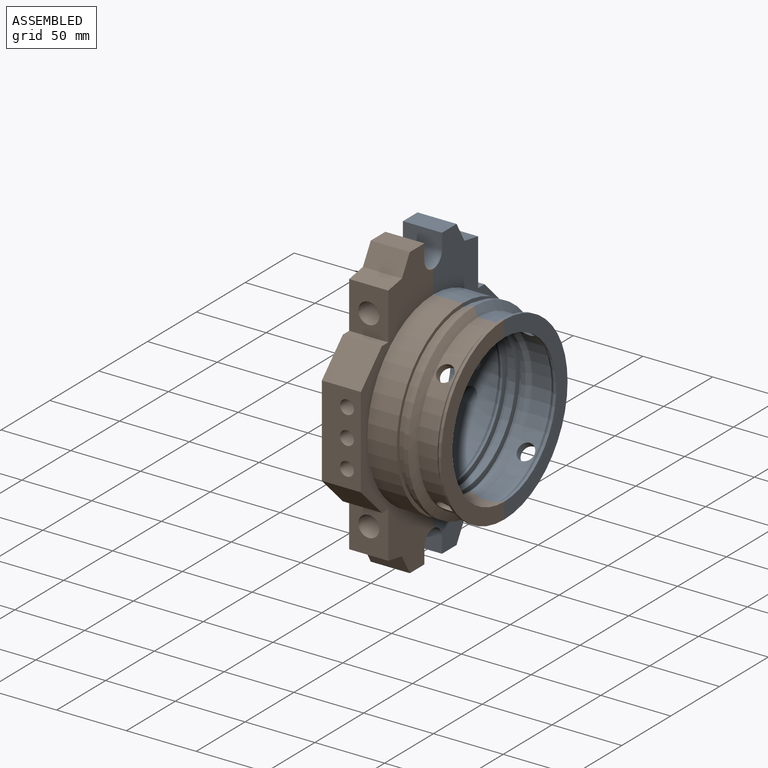
[diagram: assembled view]
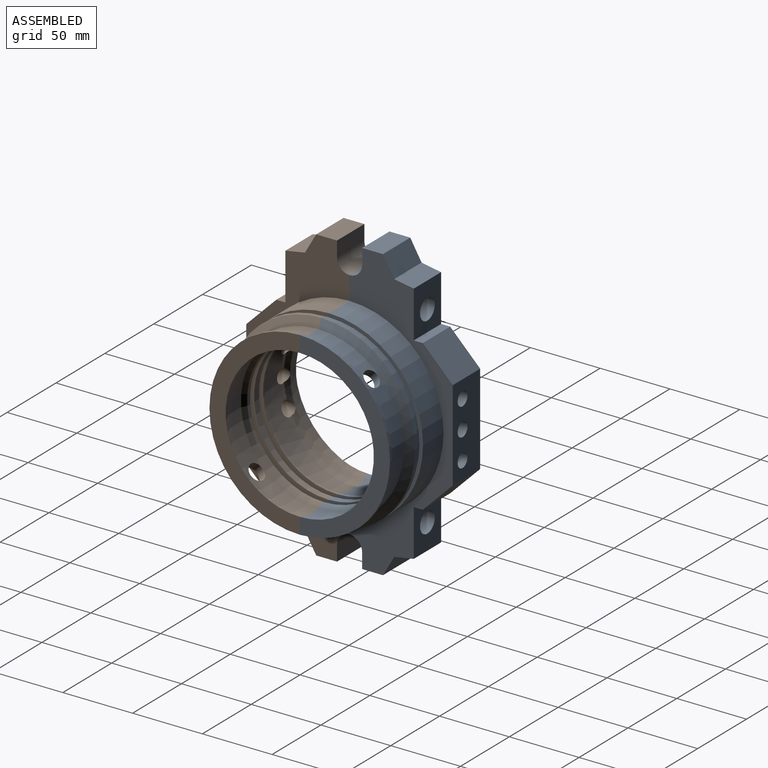
[diagram: assembled view, second angle]
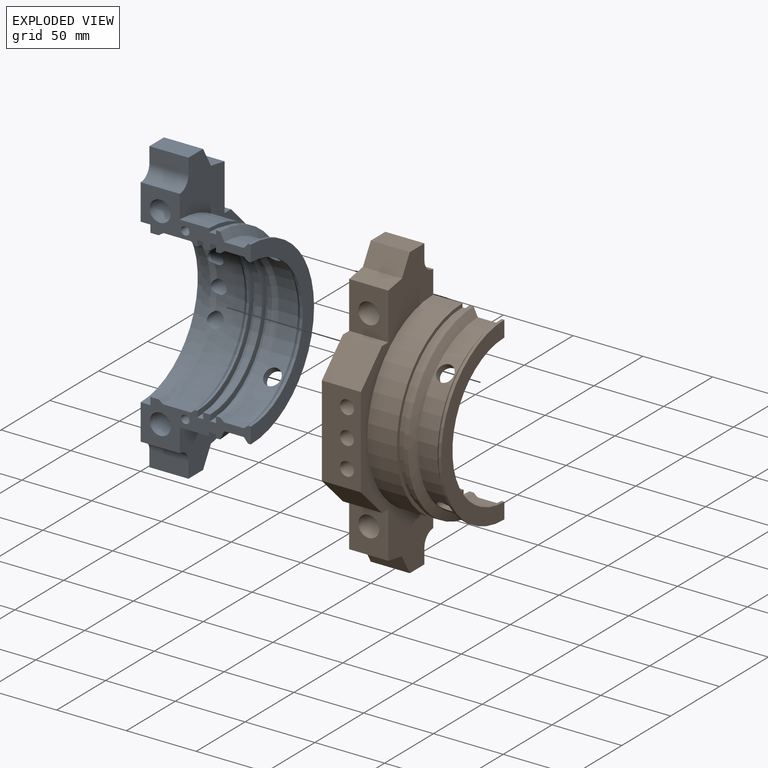
[diagram: exploded view]
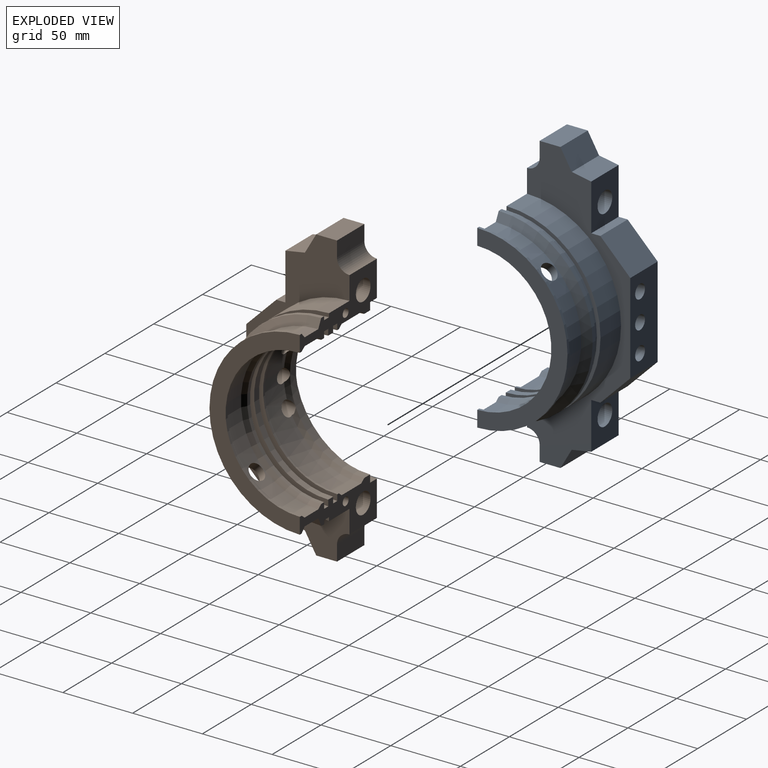
[diagram: exploded view, second angle]
ASSEMBLY  parts=2 mates=3
PART A: 66 faces, bbox 79.1x74.1x208.1 mm
  f0: cone r=53.15mm half-angle=38.1deg, axis (1,0,0), area 52.1mm2, adj f15,f17,f59,f63
  f1: cone r=53.15mm half-angle=38.1deg, axis (1,0,0), area 52.1mm2, adj f15,f17,f59,f61
  f2: cone r=53.15mm half-angle=38.1deg, axis (1,0,0), area 234.4mm2, adj f6,f15,f17,f60,f61
  f3: plane 28x14.92mm, normal (0,0,1), area 417.7mm2, adj f4,f5,f9,f54
  f4: plane 208x74mm, normal (-1,0,0), area 5889.1mm2, adj f3,f6,f7,f8,f9,f10,f11,f13
  f5: plane 208x74mm, normal (1,0,0), area 4139.6mm2, adj f3,f6,f7,f8,f9,f10,f11,f32
  f6: plane 79x30.85mm, normal (0,1,0), area 1089mm2, adj f2,f4,f5,f12,f13,f14,f15,f17
  f7: plane 79x30.85mm, normal (0,1,0), area 1089mm2, adj f4,f5,f12,f13,f14,f15,f16,f17
  f8: plane 28x14.92mm, normal (0,0,-1), area 417.7mm2, adj f4,f5,f10,f52
  f9: plane 28x14mm, normal (0,-0.87,0.5), area 452.6mm2, adj f3,f4,f5,f44
  f10: plane 28x14mm, normal (0,-0.87,-0.5), area 452.6mm2, adj f4,f5,f8,f48
  f11: plane 65x28mm, normal (0,-1,0), area 1584.4mm2, adj f4,f5,f41,f45,f59,f61,f63
  f12: plane 129.4x64.7mm, normal (1,0,0), area 2138.1mm2, adj f6,f7,f31,f40
  f13: cylinder r=58.5mm len=117mm, axis (-1,0,0), area 1286.5mm2, adj f4,f6,f7,f14
  f14: plane 117x58.5mm, normal (-1,0,0), area 938.3mm2, adj f6,f7,f13,f15
  f15: cylinder r=53.15mm len=106.3mm, axis (-1,0,0), area 1001.9mm2, adj f0,f1,f2,f6,f7,f14,f16
  f16: cone r=53.15mm half-angle=38.1deg, axis (1,0,0), area 234.4mm2, adj f7,f15,f17,f62,f63
  f17: cylinder r=55.5mm len=111mm, axis (-1,0,0), area 3302.1mm2, adj f0,f1,f2,f6,f7,f16,f18,f59
  f18: cone r=55.5mm half-angle=38.1deg, axis (-1,0,0), area 650.4mm2, adj f6,f7,f17,f19
  f19: cylinder r=53.15mm len=106.3mm, axis (-1,0,0), area 267.2mm2, adj f6,f7,f18,f20
  f20: plane 115x57.5mm, normal (1,0,0), area 756.1mm2, adj f6,f7,f19,f21
  f21: cylinder r=57.5mm len=115mm, axis (-1,0,0), area 758.7mm2, adj f6,f7,f20,f22
  f22: plane 115x57.5mm, normal (-1,0,0), area 756.1mm2, adj f6,f7,f21,f23
  f23: cylinder r=53.15mm len=106.3mm, axis (-1,0,0), area 834.9mm2, adj f6,f7,f22,f24
  f24: plane 115x57.5mm, normal (1,0,0), area 756.1mm2, adj f6,f7,f23,f25
  f25: cylinder r=57.5mm len=115mm, axis (-1,0,0), area 758.7mm2, adj f6,f7,f24,f26
  f26: plane 115x57.5mm, normal (-1,0,0), area 756.1mm2, adj f6,f7,f25,f27
  f27: cylinder r=53.15mm len=106.3mm, axis (-1,0,0), area 500.9mm2, adj f6,f7,f26,f28
  f28: cone r=53.15mm half-angle=38.1deg, axis (1,0,0), area 650.4mm2, adj f6,f7,f27,f29
  f29: cylinder r=55.5mm len=111mm, axis (-1,0,0), area 2214.7mm2, adj f6,f7,f28,f30,f64,f65
  f30: cone r=55.5mm half-angle=38.1deg, axis (-1,0,0), area 650.4mm2, adj f6,f7,f29,f31
  f31: cylinder r=53.15mm len=106.3mm, axis (-1,0,0), area 334mm2, adj f6,f7,f12,f30
  f32: cylinder r=67.35mm len=134.7mm, axis (1,0,0), area 4443.3mm2, adj f5,f6,f7,f33
  f33: plane 134.7x67.35mm, normal (1,0,0), area 539.5mm2, adj f6,f7,f32,f34
  f34: cylinder r=64.75mm len=129.5mm, axis (1,0,0), area 1017.1mm2, adj f6,f7,f33,f35
  f35: plane 134.7x67.35mm, normal (-1,0,0), area 539.5mm2, adj f6,f7,f34,f36
  f36: cylinder r=67.35mm len=134.7mm, axis (1,0,0), area 634.8mm2, adj f6,f7,f35,f37
  f37: cone r=67.35mm half-angle=63.8deg, axis (-1,0,0), area 1373.2mm2, adj f6,f7,f36,f38
  f38: cylinder r=61.25mm len=122.5mm, axis (1,0,0), area 2467.2mm2, adj f6,f7,f37,f39,f64,f65
  f39: cone r=61.25mm half-angle=49deg, axis (1,0,0), area 904.5mm2, adj f6,f7,f38,f40
  f40: cylinder r=64.7mm len=129.4mm, axis (1,0,0), area 406.5mm2, adj f6,f7,f12,f39
  f41: plane 28x21.5mm, normal (0,-0.71,0.71), area 851.4mm2, adj f4,f5,f11,f42
  f42: plane 28x6.5mm, normal (0,0,1), area 182mm2, adj f4,f5,f41,f43
  f43: plane 33.53x28mm, normal (0,-1,0), area 762.2mm2, adj f4,f5,f42,f44,f50
  f44: plane 28x14mm, normal (0,-0.17,0.98), area 398mm2, adj f4,f5,f9,f43
  f45: plane 28x21.5mm, normal (0,-0.71,-0.71), area 851.4mm2, adj f4,f5,f11,f46
  f46: plane 28x6.5mm, normal (0,0,-1), area 182mm2, adj f4,f5,f45,f47
  f47: plane 33.53x28mm, normal (0,-1,0), area 762.2mm2, adj f4,f5,f46,f48,f49
  f48: plane 28x14mm, normal (0,-0.17,-0.98), area 398mm2, adj f4,f5,f10,f47
  f49: cylinder r=7.5mm len=46mm, axis (0,1,0), area 2167.7mm2, adj f7,f47
  f50: cylinder r=7.5mm len=46mm, axis (0,1,0), area 2167.7mm2, adj f6,f43
  f51: cylinder r=9mm len=28mm, axis (-1,0,0), area 395.8mm2, adj f4,f5,f7,f52
  f52: plane 28x11mm, normal (0,1,0), area 308mm2, adj f4,f5,f8,f51
  f53: cylinder r=9mm len=28mm, axis (-1,0,0), area 395.8mm2, adj f4,f5,f6,f54
  f54: plane 28x11mm, normal (0,1,0), area 308mm2, adj f3,f4,f5,f53
  f55: cone r=0mm half-angle=59deg, axis (0,1,0), area 33mm2, adj f56
  f56: cylinder r=3mm len=11mm, axis (0,1,0), area 207.3mm2, adj f7,f55
  f57: cone r=0mm half-angle=59deg, axis (0,1,0), area 33mm2, adj f58
  f58: cylinder r=3mm len=11mm, axis (0,1,0), area 207.3mm2, adj f6,f57
  f59: cylinder r=5mm len=20.85mm, axis (0,-1,0), area 602.5mm2, adj f0,f1,f11,f17
  f60: plane 3.08x1.66mm, normal (0,-1,0), area 0.6mm2, adj f2,f61
  f61: cylinder r=5mm len=25mm, axis (0,-1,0), area 721.2mm2, adj f1,f2,f11,f17,f60
  f62: plane 3.08x1.66mm, normal (0,-1,0), area 0.6mm2, adj f16,f63
  f63: cylinder r=5mm len=25mm, axis (0,-1,0), area 721mm2, adj f0,f11,f16,f17,f62
  f64: cylinder r=6mm len=12.78mm, axis (0,-0.71,-0.71), area 217.3mm2, adj f29,f38
  f65: cylinder r=6mm len=12.78mm, axis (0,-0.71,0.71), area 217.3mm2, adj f29,f38
PART B: same geometry as A
PLACE A rot(axis=(1,0,0),180deg) t=(27.24,-58.49,296.93)mm
PLACE B rot(axis=(0.21,0.97,0.13),0deg) t=(27.24,-58.49,88.93)mm fixed
MATE planar B.f4 <-> A.f4  axis (-1,0,0) through (-12.26,-95.12,192.93)mm
MATE planar B.f6 <-> A.f7  axis (0,1,0) through (15.74,-58.49,268.61)mm
MATE revolute A.f0 <-> B.f0  axis (-1,0,0) through (-8.76,-58.49,192.93)mm
